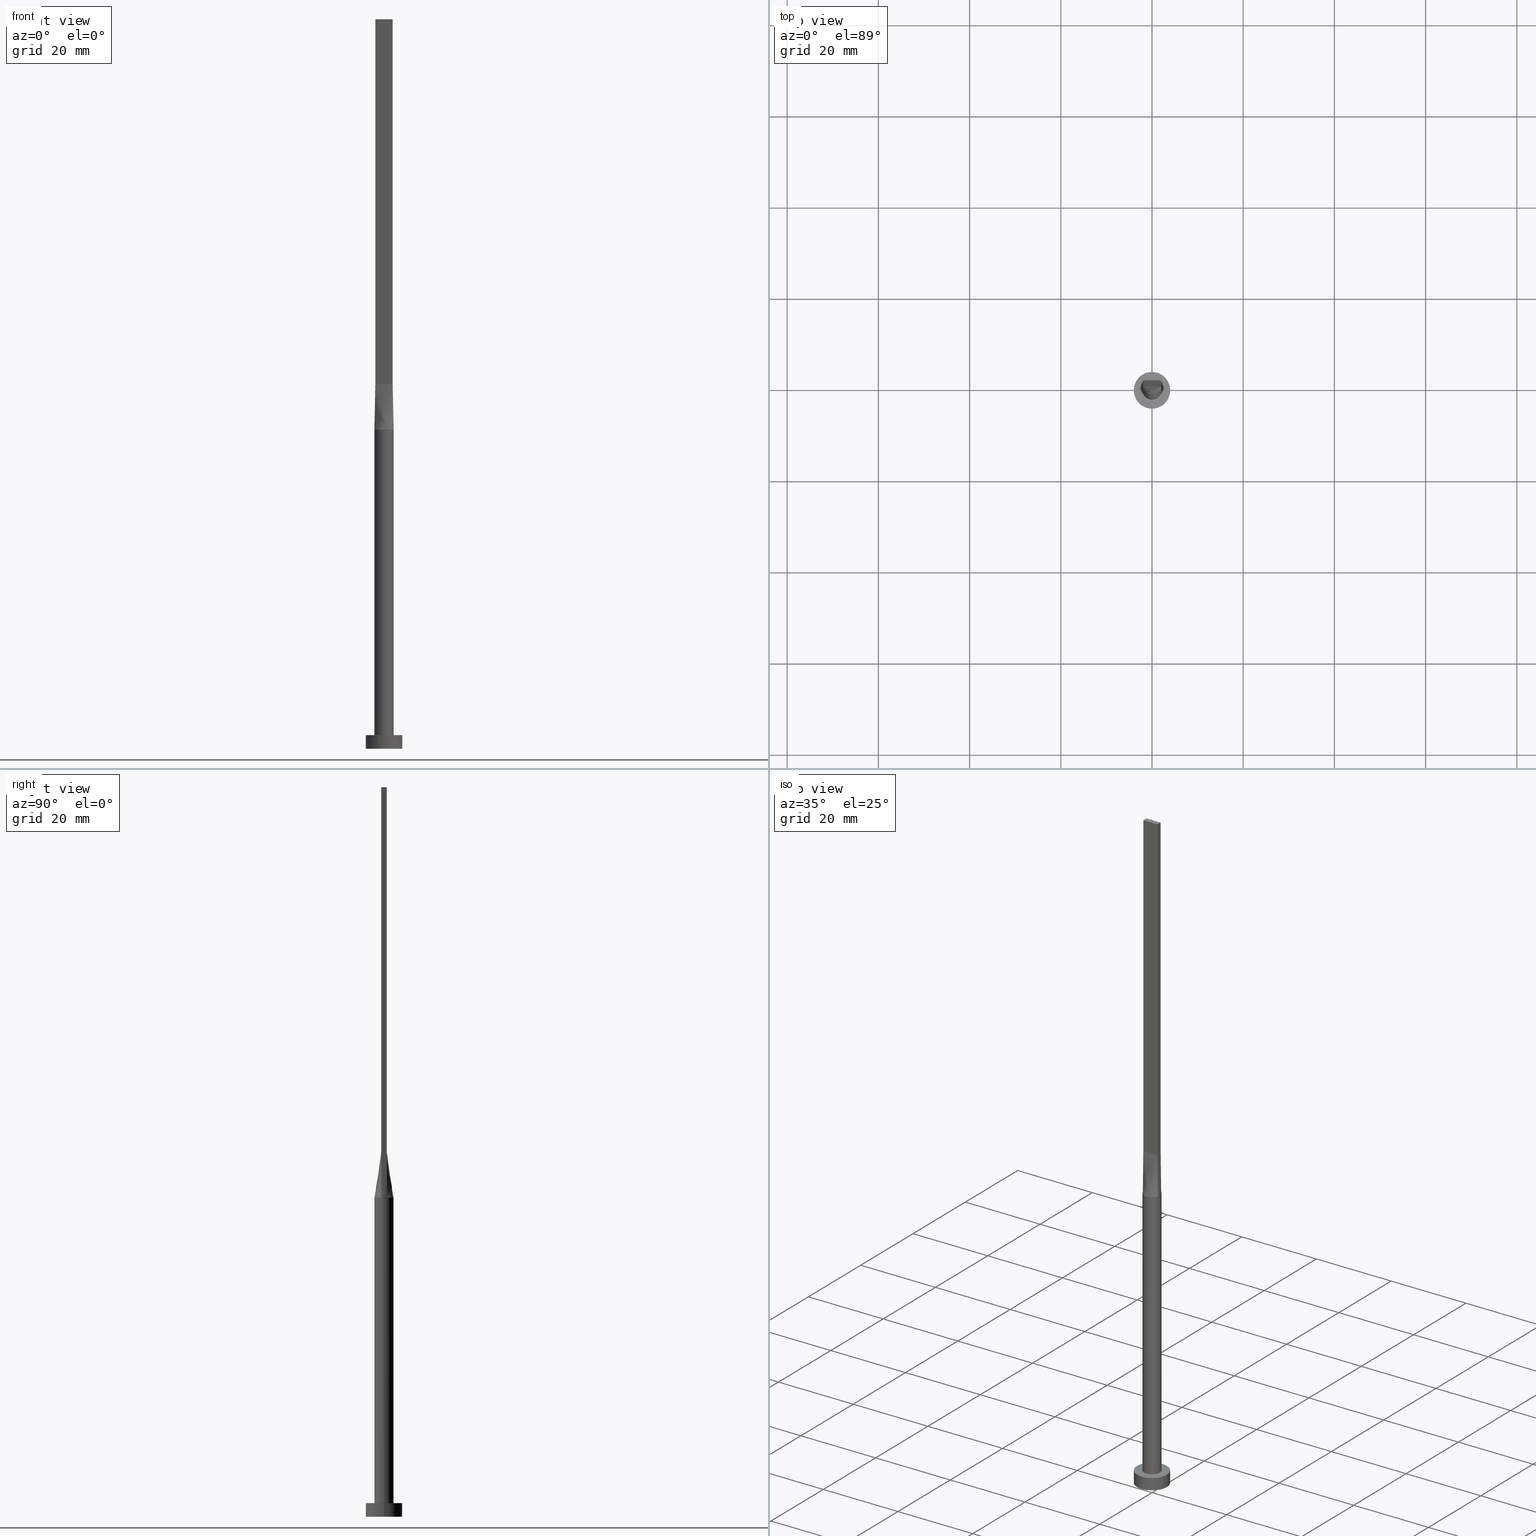
[diagram: canonical four-view strip — front | top / right | iso, engineering-drawing reading convention]
A machine part, canonical four-view strip (front | top / right | iso — engineering-drawing reading convention). The complete STEP part file that produces these views, byte-faithful:
ISO-10303-21;
HEADER;
FILE_DESCRIPTION (( 'STEP AP203' ),
    '1' );
FILE_NAME ('89bb.STEP',
    '2023-02-13T11:24:02',
    ( '' ),
    ( '' ),
    'SwSTEP 2.0',
    'SolidWorks 2019',
    '' );
FILE_SCHEMA (( 'CONFIG_CONTROL_DESIGN' ));
ENDSEC;

DATA;
#1 = EDGE_CURVE ( 'NONE', #192, #41, #16, .T. ) ;
#2 = DIRECTION ( 'NONE',  ( -1.000000000000000000, 5.706327223607918787E-17, 0.000000000000000000 ) ) ;
#3 = ORIENTED_EDGE ( 'NONE', *, *, #66, .T. ) ;
#4 = PERSON_AND_ORGANIZATION ( #333, #51 ) ;
#5 = AXIS2_PLACEMENT_3D ( 'NONE', #368, #105, #381 ) ;
#6 = CARTESIAN_POINT ( 'NONE',  ( -1.266666666666668162, -0.5999999999999994227, 79.99999999999998579 ) ) ;
#7 = CC_DESIGN_PERSON_AND_ORGANIZATION_ASSIGNMENT ( #149, #201, ( #200 ) ) ;
#8 = DIRECTION ( 'NONE',  ( -1.807003620809174632E-16, -1.000000000000000000, 0.000000000000000000 ) ) ;
#9 = DIRECTION ( 'NONE',  ( 0.000000000000000000, 0.000000000000000000, 1.000000000000000000 ) ) ;
#10 = EDGE_CURVE ( 'NONE', #565, #192, #511, .T. ) ;
#11 = CARTESIAN_POINT ( 'NONE',  ( -1.899999999999999467, 0.1999999999999964584, 79.99999999999998579 ) ) ;
#12 = CARTESIAN_POINT ( 'NONE',  ( 2.100000000000000089, 0.2158003972066308285, 69.99999999999998579 ) ) ;
#13 = CARTESIAN_POINT ( 'NONE',  ( -1.899999999999999911, -0.5999999999999995337, 80.00000000000000000 ) ) ;
#14 = CIRCLE ( 'NONE', #491, 4.000000000000000000 ) ;
#15 = CARTESIAN_POINT ( 'NONE',  ( -1.184262492297964098, -1.748903470433446294, 70.00000000000000000 ) ) ;
#16 = LINE ( 'NONE', #453, #574 ) ;
#17 = DIRECTION ( 'NONE',  ( -0.000000000000000000, -0.000000000000000000, -1.000000000000000000 ) ) ;
#18 = AXIS2_PLACEMENT_3D ( 'NONE', #538, #173, #119 ) ;
#19 = CARTESIAN_POINT ( 'NONE',  ( 2.100000000000000089, 2.571758278209441957E-16, 3.000000000000000000 ) ) ;
#20 = VECTOR ( 'NONE', #76, 1000.000000000000000 ) ;
#21 = CARTESIAN_POINT ( 'NONE',  ( 1.899999999999999689, -0.1999999999999998168, 79.99999999999998579 ) ) ;
#22 = CARTESIAN_POINT ( 'NONE',  ( -1.899999999999999911, -0.5999999999999995337, 80.00000000000000000 ) ) ;
#23 = ORIENTED_EDGE ( 'NONE', *, *, #508, .F. ) ;
#24 = CC_DESIGN_APPROVAL ( #496, ( #200 ) ) ;
#25 = CARTESIAN_POINT ( 'NONE',  ( 0.3166666666666652086, 0.6000000000000000888, 79.99999999999998579 ) ) ;
#26 = FACE_BOUND ( 'NONE', #545, .T. ) ;
#27 = FACE_OUTER_BOUND ( 'NONE', #175, .T. ) ;
#28 = PLANE ( 'NONE',  #89 ) ;
#29 = ORIENTED_EDGE ( 'NONE', *, *, #124, .T. ) ;
#30 = CARTESIAN_POINT ( 'NONE',  ( 1.184262492297964320, -1.748903470433446961, 70.00000000000001421 ) ) ;
#31 = CARTESIAN_POINT ( 'NONE',  ( 0.000000000000000000, 0.000000000000000000, 70.00000000000000000 ) ) ;
#32 = EDGE_CURVE ( 'NONE', #509, #49, #411, .T. ) ;
#33 = DIRECTION ( 'NONE',  ( -0.000000000000000000, -0.000000000000000000, -1.000000000000000000 ) ) ;
#34 = CALENDAR_DATE ( 2023, 13, 2 ) ;
#35 = CARTESIAN_POINT ( 'NONE',  ( 0.000000000000000000, 0.000000000000000000, 3.000000000000000000 ) ) ;
#36 = ORIENTED_EDGE ( 'NONE', *, *, #110, .F. ) ;
#37 = PRODUCT_RELATED_PRODUCT_CATEGORY ( 'detail', '', ( #97 ) ) ;
#38 = DIRECTION ( 'NONE',  ( 0.000000000000000000, 0.000000000000000000, 1.000000000000000000 ) ) ;
#39 = APPROVAL_PERSON_ORGANIZATION ( #4, #107, #414 ) ;
#40 = CARTESIAN_POINT ( 'NONE',  ( -1.108333333333334281, 0.6000000000000000888, 79.99999999999998579 ) ) ;
#41 = VERTEX_POINT ( 'NONE', #59 ) ;
#42 = VECTOR ( 'NONE', #299, 1000.000000000000000 ) ;
#43 = LINE ( 'NONE', #402, #42 ) ;
#44 = VERTEX_POINT ( 'NONE', #240 ) ;
#45 = VECTOR ( 'NONE', #523, 1000.000000000000000 ) ;
#46 = ORIENTED_EDGE ( 'NONE', *, *, #551, .F. ) ;
#47 = EDGE_CURVE ( 'NONE', #346, #572, #428, .T. ) ;
#48 = AXIS2_PLACEMENT_3D ( 'NONE', #133, #279, #53 ) ;
#49 = VERTEX_POINT ( 'NONE', #19 ) ;
#50 = CARTESIAN_POINT ( 'NONE',  ( -0.7916666666666692942, -0.5999999999999994227, 79.99999999999998579 ) ) ;
#51 = ORGANIZATION ( 'NEUR�EN�', 'NEUR�EN�', '' ) ;
#52 = CARTESIAN_POINT ( 'NONE',  ( -1.899999999999999689, -0.4000000000000020761, 79.99999999999998579 ) ) ;
#53 = DIRECTION ( 'NONE',  ( 1.000000000000000000, 0.000000000000000000, 0.000000000000000000 ) ) ;
#54 = PRODUCT_DEFINITION ( 'NEZN�M�', '', #397, #138 ) ;
#55 = CARTESIAN_POINT ( 'NONE',  ( -2.100000000000000089, -0.2158003972066306064, 69.99999999999998579 ) ) ;
#56 = ORIENTED_EDGE ( 'NONE', *, *, #527, .T. ) ;
#57 = FACE_OUTER_BOUND ( 'NONE', #420, .T. ) ;
#58 =( GEOMETRIC_REPRESENTATION_CONTEXT ( 3 ) GLOBAL_UNCERTAINTY_ASSIGNED_CONTEXT ( ( #308 ) ) GLOBAL_UNIT_ASSIGNED_CONTEXT ( ( #169, #401, #167 ) ) REPRESENTATION_CONTEXT ( 'NONE', 'WORKASPACE' ) );
#59 = CARTESIAN_POINT ( 'NONE',  ( -1.899999999999999911, -0.5999999999999995337, 160.0000000000000000 ) ) ;
#60 = CARTESIAN_POINT ( 'NONE',  ( 0.000000000000000000, 0.000000000000000000, 3.000000000000000000 ) ) ;
#61 = CALENDAR_DATE ( 2023, 13, 2 ) ;
#62 = VECTOR ( 'NONE', #464, 1000.000000000000000 ) ;
#63 = DIRECTION ( 'NONE',  ( 1.000000000000000000, 0.000000000000000000, 0.000000000000000000 ) ) ;
#64 = DATE_AND_TIME ( #517, #578 ) ;
#65 = DIRECTION ( 'NONE',  ( -0.000000000000000000, -0.000000000000000000, -1.000000000000000000 ) ) ;
#66 = EDGE_CURVE ( 'NONE', #44, #90, #195, .T. ) ;
#67 = CARTESIAN_POINT ( 'NONE',  ( 1.266666666666665941, 0.6000000000000000888, 79.99999999999998579 ) ) ;
#68 = ADVANCED_FACE ( 'NONE', ( #180 ), #500, .T. ) ;
#69 = LINE ( 'NONE', #285, #20 ) ;
#70 = ORIENTED_EDGE ( 'NONE', *, *, #406, .T. ) ;
#71 = FACE_OUTER_BOUND ( 'NONE', #457, .T. ) ;
#72 = APPROVAL_ROLE ( '' ) ;
#73 = CARTESIAN_POINT ( 'NONE',  ( -2.100000000000000089, -1.284268198382905442E-16, 70.00000000000000000 ) ) ;
#74 = CARTESIAN_POINT ( 'NONE',  ( 1.741666666666666252, 0.6000000000000001998, 80.00000000000000000 ) ) ;
#75 = CARTESIAN_POINT ( 'NONE',  ( -0.3166666666666682062, 0.6000000000000000888, 79.99999999999998579 ) ) ;
#76 = DIRECTION ( 'NONE',  ( -0.000000000000000000, -0.000000000000000000, -1.000000000000000000 ) ) ;
#77 = CYLINDRICAL_SURFACE ( 'NONE', #330, 2.100000000000000089 ) ;
#78 = CARTESIAN_POINT ( 'NONE',  ( -1.529462611013499451, 1.456669187245239527, 70.00000000000000000 ) ) ;
#79 = LINE ( 'NONE', #400, #543 ) ;
#80 = ADVANCED_FACE ( 'NONE', ( #26, #165 ), #434, .T. ) ;
#81 = DIRECTION ( 'NONE',  ( 0.000000000000000000, 0.000000000000000000, 1.000000000000000000 ) ) ;
#82 = ORIENTED_EDGE ( 'NONE', *, *, #327, .F. ) ;
#83 = ORIENTED_EDGE ( 'NONE', *, *, #254, .T. ) ;
#84 = CARTESIAN_POINT ( 'NONE',  ( 1.899999999999999023, -0.5999999999999997558, 160.0000000000000000 ) ) ;
#85 = ORIENTED_EDGE ( 'NONE', *, *, #527, .F. ) ;
#86 = ORIENTED_EDGE ( 'NONE', *, *, #466, .F. ) ;
#87 = EDGE_CURVE ( 'NONE', #49, #509, #284, .T. ) ;
#88 = AXIS2_PLACEMENT_3D ( 'NONE', #260, #161, #344 ) ;
#89 = AXIS2_PLACEMENT_3D ( 'NONE', #208, #532, #2 ) ;
#90 = VERTEX_POINT ( 'NONE', #104 ) ;
#91 = ORIENTED_EDGE ( 'NONE', *, *, #100, .T. ) ;
#92 = CARTESIAN_POINT ( 'NONE',  ( 1.951261798390848901, 0.6161879363339524129, 75.00000000000001421 ) ) ;
#93 = CALENDAR_DATE ( 2023, 13, 2 ) ;
#94 = CARTESIAN_POINT ( 'NONE',  ( -0.6333333333333361903, -0.5999999999999994227, 79.99999999999998579 ) ) ;
#95 = CARTESIAN_POINT ( 'NONE',  ( 0.000000000000000000, 0.000000000000000000, 0.000000000000000000 ) ) ;
#96 = VECTOR ( 'NONE', #65, 1000.000000000000000 ) ;
#97 = PRODUCT ( '89bb', '89bb', '', ( #206 ) ) ;
#98 = FACE_OUTER_BOUND ( 'NONE', #423, .T. ) ;
#99 = CARTESIAN_POINT ( 'NONE',  ( 1.899999999999999689, 0.6000000000000001998, 160.0000000000000000 ) ) ;
#100 = EDGE_CURVE ( 'NONE', #44, #278, #177, .T. ) ;
#101 = LINE ( 'NONE', #433, #266 ) ;
#102 = CIRCLE ( 'NONE', #5, 2.100000000000000089 ) ;
#103 = COORDINATED_UNIVERSAL_TIME_OFFSET ( 1, 0, .AHEAD. ) ;
#104 = CARTESIAN_POINT ( 'NONE',  ( 1.899999999999999689, 0.6000000000000001998, 80.00000000000000000 ) ) ;
#105 = DIRECTION ( 'NONE',  ( 0.000000000000000000, 0.000000000000000000, 1.000000000000000000 ) ) ;
#106 = DIRECTION ( 'NONE',  ( 1.000000000000000000, 0.000000000000000000, -0.000000000000000000 ) ) ;
#107 = APPROVAL ( #134, 'NEUR�EN�' ) ;
#108 = CARTESIAN_POINT ( 'NONE',  ( -1.951261798390848901, -0.6161879363339519688, 75.00000000000001421 ) ) ;
#109 = CARTESIAN_POINT ( 'NONE',  ( -1.899999999999999689, 0.6000000000000001998, 80.00000000000000000 ) ) ;
#110 = EDGE_CURVE ( 'NONE', #132, #509, #154, .T. ) ;
#111 = CARTESIAN_POINT ( 'NONE',  ( -0.5124799074986362557, 2.051574327850739454, 70.00000000000001421 ) ) ;
#112 = MANIFOLD_SOLID_BREP ( 'P�idat vysunut�m5', #580 ) ;
#113 = CIRCLE ( 'NONE', #280, 4.000000000000000000 ) ;
#114 = CARTESIAN_POINT ( 'NONE',  ( 1.667357759214464608, 1.291791096182927090, 70.00000000000001421 ) ) ;
#115 = CARTESIAN_POINT ( 'NONE',  ( 0.1583333333333316328, 0.6000000000000000888, 79.99999999999998579 ) ) ;
#116 = VECTOR ( 'NONE', #288, 1000.000000000000114 ) ;
#117 = APPLICATION_PROTOCOL_DEFINITION ( 'international standard', 'config_control_design', 1994, #431 ) ;
#118 = CARTESIAN_POINT ( 'NONE',  ( -1.184262492297963876, 1.748903470433446294, 70.00000000000001421 ) ) ;
#119 = DIRECTION ( 'NONE',  ( 1.000000000000000000, 0.000000000000000000, 0.000000000000000000 ) ) ;
#120 = APPROVAL ( #301, 'NEUR�EN�' ) ;
#121 = EDGE_LOOP ( 'NONE', ( #91, #364, #85, #263 ) ) ;
#122 = DIRECTION ( 'NONE',  ( 1.000000000000000000, 0.000000000000000000, 0.000000000000000000 ) ) ;
#123 = ORIENTED_EDGE ( 'NONE', *, *, #220, .F. ) ;
#124 = EDGE_CURVE ( 'NONE', #572, #573, #163, .T. ) ;
#125 = ORIENTED_EDGE ( 'NONE', *, *, #387, .F. ) ;
#126 = CARTESIAN_POINT ( 'NONE',  ( 1.667357759214464830, -1.291791096182927534, 70.00000000000001421 ) ) ;
#127 = ORIENTED_EDGE ( 'NONE', *, *, #218, .F. ) ;
#128 = PERSON_AND_ORGANIZATION ( #333, #51 ) ;
#129 = ORIENTED_EDGE ( 'NONE', *, *, #444, .T. ) ;
#130 = PERSON_AND_ORGANIZATION ( #333, #51 ) ;
#131 = AXIS2_PLACEMENT_3D ( 'NONE', #477, #544, #178 ) ;
#132 = VERTEX_POINT ( 'NONE', #73 ) ;
#133 = CARTESIAN_POINT ( 'NONE',  ( 0.000000000000000000, 0.000000000000000000, 3.000000000000000000 ) ) ;
#134 = APPROVAL_STATUS ( 'not_yet_approved' ) ;
#135 = CARTESIAN_POINT ( 'NONE',  ( -2.002523596781697890, -0.6323758726679044040, 70.00000000000000000 ) ) ;
#136 = DIRECTION ( 'NONE',  ( 1.000000000000000000, 0.000000000000000000, 0.000000000000000000 ) ) ;
#137 = AXIS2_PLACEMENT_3D ( 'NONE', #237, #389, #198 ) ;
#138 = DESIGN_CONTEXT ( 'detailed design', #386, 'design' ) ;
#139 = CARTESIAN_POINT ( 'NONE',  ( 4.000000000000000000, 4.898587196589412829E-16, 3.000000000000000000 ) ) ;
#140 = CARTESIAN_POINT ( 'NONE',  ( -1.741666666666666918, -0.5999999999999994227, 79.99999999999998579 ) ) ;
#141 = CARTESIAN_POINT ( 'NONE',  ( -0.2565105576742081062, -2.100000000000000089, 70.00000000000000000 ) ) ;
#142 = EDGE_CURVE ( 'NONE', #235, #273, #69, .T. ) ;
#143 = ORIENTED_EDGE ( 'NONE', *, *, #110, .T. ) ;
#144 = PLANE ( 'NONE',  #504 ) ;
#145 = CC_DESIGN_PERSON_AND_ORGANIZATION_ASSIGNMENT ( #306, #501, ( #397 ) ) ;
#146 = ORIENTED_EDGE ( 'NONE', *, *, #254, .F. ) ;
#147 = LINE ( 'NONE', #373, #366 ) ;
#148 = VECTOR ( 'NONE', #413, 1000.000000000000000 ) ;
#149 = PERSON_AND_ORGANIZATION ( #333, #51 ) ;
#150 = ORIENTED_EDGE ( 'NONE', *, *, #100, .F. ) ;
#151 = DATE_AND_TIME ( #93, #484 ) ;
#152 = CARTESIAN_POINT ( 'NONE',  ( 2.100000000000000089, 3.372022381799045987E-17, 70.00000000000000000 ) ) ;
#153 = CARTESIAN_POINT ( 'NONE',  ( -0.1583333333333350745, 0.6000000000000000888, 79.99999999999998579 ) ) ;
#154 = LINE ( 'NONE', #518, #96 ) ;
#155 = ADVANCED_FACE ( 'NONE', ( #437 ), #28, .F. ) ;
#156 = PERSON_AND_ORGANIZATION_ROLE ( 'design_owner' ) ;
#157 = CARTESIAN_POINT ( 'NONE',  ( -2.100000000000000089, 0.000000000000000000, 3.000000000000000000 ) ) ;
#158 = DIRECTION ( 'NONE',  ( 0.000000000000000000, 0.000000000000000000, 1.000000000000000000 ) ) ;
#159 = ORIENTED_EDGE ( 'NONE', *, *, #406, .F. ) ;
#160 = AXIS2_PLACEMENT_3D ( 'NONE', #485, #81, #259 ) ;
#161 = DIRECTION ( 'NONE',  ( 0.000000000000000000, 0.000000000000000000, 1.000000000000000000 ) ) ;
#162 = CARTESIAN_POINT ( 'NONE',  ( 0.6333333333333320825, 0.6000000000000000888, 79.99999999999998579 ) ) ;
#163 = LINE ( 'NONE', #108, #116 ) ;
#164 = EDGE_CURVE ( 'NONE', #534, #565, #43, .T. ) ;
#165 = FACE_OUTER_BOUND ( 'NONE', #168, .T. ) ;
#166 = ORIENTED_EDGE ( 'NONE', *, *, #508, .T. ) ;
#167 =( NAMED_UNIT ( * ) SI_UNIT ( $, .STERADIAN. ) SOLID_ANGLE_UNIT ( ) );
#168 = EDGE_LOOP ( 'NONE', ( #391, #83 ) ) ;
#169 =( LENGTH_UNIT ( ) NAMED_UNIT ( * ) SI_UNIT ( .MILLI., .METRE. ) );
#170 = DIRECTION ( 'NONE',  ( 0.000000000000000000, 0.000000000000000000, 1.000000000000000000 ) ) ;
#171 = EDGE_CURVE ( 'NONE', #340, #44, #361, .T. ) ;
#172 = CARTESIAN_POINT ( 'NONE',  ( -1.899999999999999911, -0.5999999999999995337, 80.00000000000000000 ) ) ;
#173 = DIRECTION ( 'NONE',  ( 0.000000000000000000, 0.000000000000000000, 1.000000000000000000 ) ) ;
#174 = CARTESIAN_POINT ( 'NONE',  ( 1.583333333333331483, -0.5999999999999996447, 79.99999999999998579 ) ) ;
#175 = EDGE_LOOP ( 'NONE', ( #300, #222, #329, #36, #303, #150 ) ) ;
#176 = VECTOR ( 'NONE', #388, 1000.000000000000114 ) ;
#177 = B_SPLINE_CURVE_WITH_KNOTS ( 'NONE', 3,
 ( #282, #215, #525, #114, #515, #252, #378, #211, #530, #291, #111, #562, #467, #430, #322, #480, #394, #385 ),
 .UNSPECIFIED., .F., .F.,
 ( 4, 2, 2, 2, 2, 2, 2, 2, 4 ),
 ( 0.000000000000000000, 0.1249999999999999167, 0.2499999999999998890, 0.3749999999999998335, 0.4999999999999998890, 0.6249999999999998890, 0.7499999999999998890, 0.8750000000000000000, 1.000000000000000000 ),
 .UNSPECIFIED. ) ;
#178 = DIRECTION ( 'NONE',  ( -1.000000000000000000, 0.000000000000000000, 0.000000000000000000 ) ) ;
#179 = CARTESIAN_POINT ( 'NONE',  ( 1.108333333333330506, -0.5999999999999996447, 79.99999999999998579 ) ) ;
#180 = FACE_OUTER_BOUND ( 'NONE', #267, .T. ) ;
#181 = ORIENTED_EDGE ( 'NONE', *, *, #549, .T. ) ;
#182 = CARTESIAN_POINT ( 'NONE',  ( -1.899999999999999689, -0.2000000000000034250, 79.99999999999998579 ) ) ;
#183 = CARTESIAN_POINT ( 'NONE',  ( -1.667357759214464386, -1.291791096182926424, 70.00000000000000000 ) ) ;
#184 = ORIENTED_EDGE ( 'NONE', *, *, #551, .T. ) ;
#185 = FACE_OUTER_BOUND ( 'NONE', #197, .T. ) ;
#186 = VECTOR ( 'NONE', #408, 1000.000000000000000 ) ;
#187 = EDGE_CURVE ( 'NONE', #226, #273, #334, .T. ) ;
#188 = B_SPLINE_SURFACE_WITH_KNOTS ( 'NONE', 3, 1, ( 
 ( #481, #338 ),
 ( #438, #74 ),
 ( #216, #399 ),
 ( #473, #67 ),
 ( #571, #253 ),
 ( #441, #214 ),
 ( #524, #162 ),
 ( #398, #25 ),
 ( #529, #115 ),
 ( #483, #153 ),
 ( #335, #75 ),
 ( #384, #531 ),
 ( #118, #251 ),
 ( #78, #40 ),
 ( #247, #561 ),
 ( #479, #470 ),
 ( #246, #370 ),
 ( #383, #294 ) ),
 .UNSPECIFIED., .F., .F., .F.,
 ( 4, 2, 2, 2, 2, 2, 2, 2, 4 ),
 ( 2, 2 ),
 ( 0.000000000000000000, 0.1249999999999999167, 0.2499999999999998890, 0.3749999999999998335, 0.4999999999999998890, 0.6249999999999998890, 0.7499999999999998890, 0.8750000000000000000, 1.000000000000000000 ),
 ( 0.000000000000000000, 1.000000000000000000 ),
 .UNSPECIFIED. ) ;
#189 = CARTESIAN_POINT ( 'NONE',  ( -2.065999667310664645, -0.4313683159928413113, 70.00000000000000000 ) ) ;
#190 = CARTESIAN_POINT ( 'NONE',  ( -0.5124799074986365888, -2.051574327850738566, 70.00000000000001421 ) ) ;
#191 = CARTESIAN_POINT ( 'NONE',  ( -4.000000000000000000, 0.000000000000000000, 3.000000000000000000 ) ) ;
#192 = VERTEX_POINT ( 'NONE', #297 ) ;
#193 = CARTESIAN_POINT ( 'NONE',  ( 2.002523596781698334, -0.6323758726679041819, 70.00000000000000000 ) ) ;
#194 = PRODUCT_DEFINITION_SHAPE ( 'NONE', 'NONE',  #54 ) ;
#195 = LINE ( 'NONE', #92, #207 ) ;
#196 = PLANE ( 'NONE',  #552 ) ;
#197 = EDGE_LOOP ( 'NONE', ( #374, #86, #567, #184 ) ) ;
#198 = DIRECTION ( 'NONE',  ( 1.000000000000000000, 0.000000000000000000, -0.000000000000000000 ) ) ;
#199 = ORIENTED_EDGE ( 'NONE', *, *, #412, .T. ) ;
#200 = SECURITY_CLASSIFICATION ( '', '', #245 ) ;
#201 = PERSON_AND_ORGANIZATION_ROLE ( 'classification_officer' ) ;
#202 = DIRECTION ( 'NONE',  ( -0.000000000000000000, -0.000000000000000000, -1.000000000000000000 ) ) ;
#203 = PERSON_AND_ORGANIZATION_ROLE ( 'creator' ) ;
#204 = CARTESIAN_POINT ( 'NONE',  ( -1.951261798390848901, 0.6161879363339521909, 75.00000000000001421 ) ) ;
#205 = DIRECTION ( 'NONE',  ( 1.807003620809174632E-16, 1.000000000000000000, 0.000000000000000000 ) ) ;
#206 = MECHANICAL_CONTEXT ( 'NONE', #431, 'mechanical' ) ;
#207 = VECTOR ( 'NONE', #305, 1000.000000000000114 ) ;
#208 = CARTESIAN_POINT ( 'NONE',  ( -1.899999999999999911, -0.5999999999999995337, 160.0000000000000000 ) ) ;
#209 = ORIENTED_EDGE ( 'NONE', *, *, #47, .T. ) ;
#210 = CARTESIAN_POINT ( 'NONE',  ( 0.7916666666666634100, -0.5999999999999996447, 79.99999999999998579 ) ) ;
#211 = CARTESIAN_POINT ( 'NONE',  ( 0.5124799074986362557, 2.051574327850739454, 70.00000000000002842 ) ) ;
#212 = EDGE_CURVE ( 'NONE', #367, #340, #577, .T. ) ;
#213 = CIRCLE ( 'NONE', #232, 2.100000000000000089 ) ;
#214 = CARTESIAN_POINT ( 'NONE',  ( 0.7916666666666655194, 0.6000000000000000888, 79.99999999999998579 ) ) ;
#215 = CARTESIAN_POINT ( 'NONE',  ( 1.952271707612931895, 0.7915068550356627597, 70.00000000000000000 ) ) ;
#216 = CARTESIAN_POINT ( 'NONE',  ( 1.878511276496548366, 0.9591670956957804028, 70.00000000000000000 ) ) ;
#217 = PERSON_AND_ORGANIZATION ( #333, #51 ) ;
#218 = EDGE_CURVE ( 'NONE', #235, #228, #14, .T. ) ;
#219 = AXIS2_PLACEMENT_3D ( 'NONE', #35, #202, #558 ) ;
#220 = EDGE_CURVE ( 'NONE', #573, #367, #302, .T. ) ;
#221 = DIRECTION ( 'NONE',  ( -1.000000000000000000, 5.421010862427522170E-16, 0.000000000000000000 ) ) ;
#222 = ORIENTED_EDGE ( 'NONE', *, *, #387, .T. ) ;
#223 = CARTESIAN_POINT ( 'NONE',  ( 1.266666666666664165, -0.5999999999999996447, 79.99999999999998579 ) ) ;
#224 = VECTOR ( 'NONE', #325, 1000.000000000000114 ) ;
#225 = ORIENTED_EDGE ( 'NONE', *, *, #10, .F. ) ;
#226 = VERTEX_POINT ( 'NONE', #499 ) ;
#227 = DIRECTION ( 'NONE',  ( -5.421010862427522170E-16, -1.000000000000000000, 0.000000000000000000 ) ) ;
#228 = VERTEX_POINT ( 'NONE', #139 ) ;
#229 = COORDINATED_UNIVERSAL_TIME_OFFSET ( 1, 0, .AHEAD. ) ;
#230 = CC_DESIGN_PERSON_AND_ORGANIZATION_ASSIGNMENT ( #392, #203, ( #54 ) ) ;
#231 = EDGE_LOOP ( 'NONE', ( #125, #490, #123, #341, #143, #336 ) ) ;
#232 = AXIS2_PLACEMENT_3D ( 'NONE', #468, #421, #432 ) ;
#233 = CARTESIAN_POINT ( 'NONE',  ( 0.1583333333333295512, -0.5999999999999995337, 79.99999999999998579 ) ) ;
#234 = FACE_OUTER_BOUND ( 'NONE', #482, .T. ) ;
#235 = VERTEX_POINT ( 'NONE', #191 ) ;
#236 = CARTESIAN_POINT ( 'NONE',  ( 1.899999999999999689, -0.3999999999999997446, 79.99999999999998579 ) ) ;
#237 = CARTESIAN_POINT ( 'NONE',  ( 0.000000000000000000, 0.000000000000000000, 0.000000000000000000 ) ) ;
#238 = CC_DESIGN_PERSON_AND_ORGANIZATION_ASSIGNMENT ( #377, #556, ( #397 ) ) ;
#239 = CARTESIAN_POINT ( 'NONE',  ( -0.1583333333333370174, -0.5999999999999995337, 79.99999999999998579 ) ) ;
#240 = CARTESIAN_POINT ( 'NONE',  ( 2.002598039528881380, 0.6323997261616642884, 70.00000000000000000 ) ) ;
#241 = CARTESIAN_POINT ( 'NONE',  ( 2.099999999999999645, -0.2158003972066312171, 69.99999999999998579 ) ) ;
#242 = DIRECTION ( 'NONE',  ( 0.000000000000000000, -1.000000000000000000, 0.000000000000000000 ) ) ;
#243 = LINE ( 'NONE', #204, #176 ) ;
#244 = CARTESIAN_POINT ( 'NONE',  ( 1.899999999999999023, -0.5999999999999997558, 80.00000000000000000 ) ) ;
#245 = SECURITY_CLASSIFICATION_LEVEL ( 'unclassified' ) ;
#246 = CARTESIAN_POINT ( 'NONE',  ( -1.952271707612931895, 0.7915068550356629817, 70.00000000000000000 ) ) ;
#247 = CARTESIAN_POINT ( 'NONE',  ( -1.667357759214464830, 1.291791096182927534, 70.00000000000001421 ) ) ;
#248 = CARTESIAN_POINT ( 'NONE',  ( 0.000000000000000000, 0.000000000000000000, 3.000000000000000000 ) ) ;
#249 = CARTESIAN_POINT ( 'NONE',  ( 1.741666666666665142, -0.5999999999999996447, 79.99999999999998579 ) ) ;
#250 = AXIS2_PLACEMENT_3D ( 'NONE', #537, #221, #227 ) ;
#251 = CARTESIAN_POINT ( 'NONE',  ( -0.7916666666666677399, 0.6000000000000000888, 79.99999999999998579 ) ) ;
#252 = CARTESIAN_POINT ( 'NONE',  ( 1.184262492297964098, 1.748903470433445628, 70.00000000000000000 ) ) ;
#253 = CARTESIAN_POINT ( 'NONE',  ( 1.108333333333332504, 0.6000000000000000888, 79.99999999999998579 ) ) ;
#254 = EDGE_CURVE ( 'NONE', #228, #235, #113, .T. ) ;
#255 = EDGE_CURVE ( 'NONE', #572, #405, #419, .T. ) ;
#256 = AXIS2_PLACEMENT_3D ( 'NONE', #60, #436, #521 ) ;
#257 = LINE ( 'NONE', #328, #45 ) ;
#258 = LINE ( 'NONE', #409, #526 ) ;
#259 = DIRECTION ( 'NONE',  ( 1.000000000000000000, -1.776356839400250465E-15, 0.000000000000000000 ) ) ;
#260 = CARTESIAN_POINT ( 'NONE',  ( 0.000000000000000000, 0.000000000000000000, 0.000000000000000000 ) ) ;
#261 = ADVANCED_FACE ( 'NONE', ( #553 ), #277, .T. ) ;
#262 = DIRECTION ( 'NONE',  ( 0.000000000000000000, 0.000000000000000000, 1.000000000000000000 ) ) ;
#263 = ORIENTED_EDGE ( 'NONE', *, *, #66, .F. ) ;
#264 = CARTESIAN_POINT ( 'NONE',  ( 1.529462611013499229, -1.456669187245239971, 70.00000000000000000 ) ) ;
#265 = ORIENTED_EDGE ( 'NONE', *, *, #164, .T. ) ;
#266 = VECTOR ( 'NONE', #563, 1000.000000000000000 ) ;
#267 = EDGE_LOOP ( 'NONE', ( #396, #127, #576, #129 ) ) ;
#268 = APPROVAL_STATUS ( 'not_yet_approved' ) ;
#269 = ADVANCED_FACE ( 'NONE', ( #502 ), #494, .T. ) ;
#270 = CARTESIAN_POINT ( 'NONE',  ( -1.529462611013499229, -1.456669187245239749, 69.99999999999998579 ) ) ;
#271 = ORIENTED_EDGE ( 'NONE', *, *, #444, .F. ) ;
#272 = CARTESIAN_POINT ( 'NONE',  ( -1.899999999999999689, 0.6000000000000001998, 80.00000000000000000 ) ) ;
#273 = VERTEX_POINT ( 'NONE', #560 ) ;
#274 = LOCAL_TIME ( 12, 24, 1.000000000000000000, #287 ) ;
#275 = CARTESIAN_POINT ( 'NONE',  ( -2.002523596781697890, -0.6323758726679042930, 70.00000000000000000 ) ) ;
#276 = ORIENTED_EDGE ( 'NONE', *, *, #1, .T. ) ;
#277 = B_SPLINE_SURFACE_WITH_KNOTS ( 'NONE', 3, 1, ( 
 ( #514, #546 ),
 ( #497, #417 ),
 ( #451, #11 ),
 ( #55, #182 ),
 ( #189, #52 ),
 ( #135, #309 ) ),
 .UNSPECIFIED., .F., .F., .F.,
 ( 4, 2, 4 ),
 ( 2, 2 ),
 ( 0.000000000000000000, 0.5000000000000000000, 1.000000000000000000 ),
 ( 0.000000000000000000, 1.000000000000000000 ),
 .UNSPECIFIED. ) ;
#278 = VERTEX_POINT ( 'NONE', #461 ) ;
#279 = DIRECTION ( 'NONE',  ( 0.000000000000000000, 0.000000000000000000, 1.000000000000000000 ) ) ;
#280 = AXIS2_PLACEMENT_3D ( 'NONE', #313, #9, #136 ) ;
#281 = CARTESIAN_POINT ( 'NONE',  ( 1.899999999999999911, -0.5999999999999997558, 80.00000000000000000 ) ) ;
#282 = CARTESIAN_POINT ( 'NONE',  ( 2.002598039528881380, 0.6323997261616642884, 70.00000000000000000 ) ) ;
#283 = PLANE ( 'NONE',  #137 ) ;
#284 = CIRCLE ( 'NONE', #539, 2.100000000000000089 ) ;
#285 = CARTESIAN_POINT ( 'NONE',  ( -4.000000000000000000, 0.000000000000000000, 3.000000000000000000 ) ) ;
#286 = CARTESIAN_POINT ( 'NONE',  ( 0.000000000000000000, 0.000000000000000000, 160.0000000000000000 ) ) ;
#287 = COORDINATED_UNIVERSAL_TIME_OFFSET ( 1, 0, .AHEAD. ) ;
#288 = DIRECTION ( 'NONE',  ( -0.01025176717979707323, -0.003237400162041204326, -0.9999422085850171449 ) ) ;
#289 = ORIENTED_EDGE ( 'NONE', *, *, #187, .T. ) ;
#290 = LINE ( 'NONE', #516, #224 ) ;
#291 = CARTESIAN_POINT ( 'NONE',  ( -0.2565105576742073845, 2.100000000000000533, 70.00000000000001421 ) ) ;
#292 = FACE_OUTER_BOUND ( 'NONE', #121, .T. ) ;
#293 = ORIENTED_EDGE ( 'NONE', *, *, #187, .F. ) ;
#294 = CARTESIAN_POINT ( 'NONE',  ( -1.899999999999999689, 0.6000000000000001998, 80.00000000000000000 ) ) ;
#295 = CC_DESIGN_APPROVAL ( #107, ( #397 ) ) ;
#296 = CARTESIAN_POINT ( 'NONE',  ( 1.952271707612932339, -0.7915068550356634258, 70.00000000000000000 ) ) ;
#297 = CARTESIAN_POINT ( 'NONE',  ( -1.899999999999999689, 0.6000000000000001998, 160.0000000000000000 ) ) ;
#298 = CARTESIAN_POINT ( 'NONE',  ( 0.000000000000000000, 0.000000000000000000, 70.00000000000000000 ) ) ;
#299 = DIRECTION ( 'NONE',  ( 5.421010862427522170E-16, 1.000000000000000000, 0.000000000000000000 ) ) ;
#300 = ORIENTED_EDGE ( 'NONE', *, *, #171, .F. ) ;
#301 = APPROVAL_STATUS ( 'not_yet_approved' ) ;
#302 = CIRCLE ( 'NONE', #355, 2.100000000000000089 ) ;
#303 = ORIENTED_EDGE ( 'NONE', *, *, #443, .F. ) ;
#304 = CARTESIAN_POINT ( 'NONE',  ( 1.899999999999999689, 0.6000000000000001998, 160.0000000000000000 ) ) ;
#305 = DIRECTION ( 'NONE',  ( -0.01025176717979709405, -0.003237400162041182208, 0.9999422085850171449 ) ) ;
#306 = PERSON_AND_ORGANIZATION ( #333, #51 ) ;
#307 = ADVANCED_FACE ( 'NONE', ( #98 ), #376, .F. ) ;
#308 = UNCERTAINTY_MEASURE_WITH_UNIT (LENGTH_MEASURE( 1.000000000000000082E-05 ), #169, 'distance_accuracy_value', 'NONE');
#309 = CARTESIAN_POINT ( 'NONE',  ( -1.899999999999999911, -0.5999999999999995337, 80.00000000000000000 ) ) ;
#310 = APPROVAL_ROLE ( '' ) ;
#311 = CARTESIAN_POINT ( 'NONE',  ( -1.108333333333335169, -0.5999999999999994227, 79.99999999999998579 ) ) ;
#312 = ADVANCED_FACE ( 'NONE', ( #57 ), #283, .F. ) ;
#313 = CARTESIAN_POINT ( 'NONE',  ( 0.000000000000000000, 0.000000000000000000, 3.000000000000000000 ) ) ;
#314 = ORIENTED_EDGE ( 'NONE', *, *, #10, .T. ) ;
#315 = ORIENTED_EDGE ( 'NONE', *, *, #255, .F. ) ;
#316 = CARTESIAN_POINT ( 'NONE',  ( 1.899999999999999023, -0.5999999999999997558, 80.00000000000000000 ) ) ;
#317 = ORIENTED_EDGE ( 'NONE', *, *, #124, .F. ) ;
#318 = VECTOR ( 'NONE', #492, 1000.000000000000000 ) ;
#319 = CARTESIAN_POINT ( 'NONE',  ( 2.002523596781697890, 0.6323758726679047371, 70.00000000000000000 ) ) ;
#320 = DIRECTION ( 'NONE',  ( 0.000000000000000000, -0.000000000000000000, -1.000000000000000000 ) ) ;
#321 = COORDINATED_UNIVERSAL_TIME_OFFSET ( 1, 0, .AHEAD. ) ;
#322 = CARTESIAN_POINT ( 'NONE',  ( -1.667357759214464830, 1.291791096182927534, 70.00000000000001421 ) ) ;
#323 = CARTESIAN_POINT ( 'NONE',  ( -1.899999999999999689, 0.6000000000000001998, 160.0000000000000000 ) ) ;
#324 = DIRECTION ( 'NONE',  ( 1.000000000000000000, 0.000000000000000000, 0.000000000000000000 ) ) ;
#325 = DIRECTION ( 'NONE',  ( -0.01025176717979720507, 0.003237400162041171366, 0.9999422085850171449 ) ) ;
#326 = ORIENTED_EDGE ( 'NONE', *, *, #255, .T. ) ;
#327 = EDGE_CURVE ( 'NONE', #405, #90, #101, .T. ) ;
#328 = CARTESIAN_POINT ( 'NONE',  ( -1.899999999999999689, 0.6000000000000001998, 80.00000000000000000 ) ) ;
#329 = ORIENTED_EDGE ( 'NONE', *, *, #87, .T. ) ;
#330 = AXIS2_PLACEMENT_3D ( 'NONE', #31, #332, #439 ) ;
#331 = DATE_TIME_ROLE ( 'creation_date' ) ;
#332 = DIRECTION ( 'NONE',  ( -0.000000000000000000, -0.000000000000000000, -1.000000000000000000 ) ) ;
#333 = PERSON ( 'NEUR�EN�', 'NEUR�EN�', 'NEUR�EN�', ('NEUR�EN�'), ('NEUR�EN�'), ('NEUR�EN�') ) ;
#334 = CIRCLE ( 'NONE', #503, 4.000000000000000000 ) ;
#335 = CARTESIAN_POINT ( 'NONE',  ( -0.5124799074986362557, 2.051574327850739454, 70.00000000000001421 ) ) ;
#336 = ORIENTED_EDGE ( 'NONE', *, *, #32, .T. ) ;
#337 = CARTESIAN_POINT ( 'NONE',  ( 0.6333333333333299731, -0.5999999999999996447, 79.99999999999998579 ) ) ;
#338 = CARTESIAN_POINT ( 'NONE',  ( 1.899999999999999689, 0.6000000000000001998, 80.00000000000000000 ) ) ;
#339 = DIRECTION ( 'NONE',  ( 0.000000000000000000, 0.000000000000000000, 1.000000000000000000 ) ) ;
#340 = VERTEX_POINT ( 'NONE', #152 ) ;
#341 = ORIENTED_EDGE ( 'NONE', *, *, #412, .F. ) ;
#342 = EDGE_CURVE ( 'NONE', #367, #405, #290, .T. ) ;
#343 = CC_DESIGN_SECURITY_CLASSIFICATION ( #200, ( #397 ) ) ;
#344 = DIRECTION ( 'NONE',  ( 1.000000000000000000, 0.000000000000000000, 0.000000000000000000 ) ) ;
#345 = DATE_AND_TIME ( #459, #557 ) ;
#346 = VERTEX_POINT ( 'NONE', #109 ) ;
#347 = ADVANCED_BREP_SHAPE_REPRESENTATION ( '89bb', ( #112, #88 ), #58 ) ;
#348 = LINE ( 'NONE', #447, #318 ) ;
#349 = ORIENTED_EDGE ( 'NONE', *, *, #142, .F. ) ;
#350 = VECTOR ( 'NONE', #8, 1000.000000000000000 ) ;
#351 = ADVANCED_FACE ( 'NONE', ( #469 ), #196, .T. ) ;
#352 = PLANE ( 'NONE',  #250 ) ;
#353 = LINE ( 'NONE', #84, #186 ) ;
#354 = B_SPLINE_SURFACE_WITH_KNOTS ( 'NONE', 3, 1, ( 
 ( #510, #281 ),
 ( #460, #236 ),
 ( #241, #21 ),
 ( #12, #424 ),
 ( #372, #375 ),
 ( #319, #471 ) ),
 .UNSPECIFIED., .F., .F., .F.,
 ( 4, 2, 4 ),
 ( 2, 2 ),
 ( 0.000000000000000000, 0.5000000000000000000, 1.000000000000000000 ),
 ( 0.000000000000000000, 1.000000000000000000 ),
 .UNSPECIFIED. ) ;
#355 = AXIS2_PLACEMENT_3D ( 'NONE', #298, #262, #359 ) ;
#356 = CC_DESIGN_PERSON_AND_ORGANIZATION_ASSIGNMENT ( #217, #156, ( #97 ) ) ;
#357 = DATE_AND_TIME ( #61, #463 ) ;
#358 = CARTESIAN_POINT ( 'NONE',  ( 0.2565105576742072735, -2.100000000000000533, 70.00000000000001421 ) ) ;
#359 = DIRECTION ( 'NONE',  ( 1.000000000000000000, 0.000000000000000000, 0.000000000000000000 ) ) ;
#360 = DIRECTION ( 'NONE',  ( -1.807003620809174632E-16, -1.000000000000000000, 0.000000000000000000 ) ) ;
#361 = CIRCLE ( 'NONE', #18, 2.100000000000000089 ) ;
#362 = APPROVAL_DATE_TIME ( #570, #496 ) ;
#363 = CARTESIAN_POINT ( 'NONE',  ( 0.5124799074986360337, -2.051574327850739454, 70.00000000000001421 ) ) ;
#364 = ORIENTED_EDGE ( 'NONE', *, *, #449, .T. ) ;
#365 = CARTESIAN_POINT ( 'NONE',  ( -1.952271707612931895, -0.7915068550356626487, 70.00000000000000000 ) ) ;
#366 = VECTOR ( 'NONE', #476, 1000.000000000000000 ) ;
#367 = VERTEX_POINT ( 'NONE', #465 ) ;
#368 = CARTESIAN_POINT ( 'NONE',  ( 0.000000000000000000, 0.000000000000000000, 70.00000000000000000 ) ) ;
#369 = CARTESIAN_POINT ( 'NONE',  ( -0.3166666666666700380, -0.5999999999999994227, 79.99999999999998579 ) ) ;
#370 = CARTESIAN_POINT ( 'NONE',  ( -1.741666666666666696, 0.6000000000000000888, 79.99999999999998579 ) ) ;
#371 = ORIENTED_EDGE ( 'NONE', *, *, #87, .F. ) ;
#372 = CARTESIAN_POINT ( 'NONE',  ( 2.065999667310664645, 0.4313683159928415889, 70.00000000000000000 ) ) ;
#373 = CARTESIAN_POINT ( 'NONE',  ( -1.899999999999999911, -0.5999999999999995337, 160.0000000000000000 ) ) ;
#374 = ORIENTED_EDGE ( 'NONE', *, *, #327, .T. ) ;
#375 = CARTESIAN_POINT ( 'NONE',  ( 1.899999999999999467, 0.4000000000000001332, 79.99999999999998579 ) ) ;
#376 = PLANE ( 'NONE',  #475 ) ;
#377 = PERSON_AND_ORGANIZATION ( #333, #51 ) ;
#378 = CARTESIAN_POINT ( 'NONE',  ( 0.9765948449220478444, 1.875594675604967065, 70.00000000000000000 ) ) ;
#379 = ORIENTED_EDGE ( 'NONE', *, *, #1, .F. ) ;
#380 = CIRCLE ( 'NONE', #445, 4.000000000000000000 ) ;
#381 = DIRECTION ( 'NONE',  ( 1.000000000000000000, 0.000000000000000000, 0.000000000000000000 ) ) ;
#382 = LINE ( 'NONE', #425, #415 ) ;
#383 = CARTESIAN_POINT ( 'NONE',  ( -2.002523596781697890, 0.6323758726679044040, 70.00000000000000000 ) ) ;
#384 = CARTESIAN_POINT ( 'NONE',  ( -0.9765948449220482885, 1.875594675604967509, 70.00000000000001421 ) ) ;
#385 = CARTESIAN_POINT ( 'NONE',  ( -2.002622288503867587, 0.6324075186587619912, 70.00000000000000000 ) ) ;
#386 = APPLICATION_CONTEXT ( 'configuration controlled 3d designs of mechanical parts and assemblies' ) ;
#387 = EDGE_CURVE ( 'NONE', #340, #49, #382, .T. ) ;
#388 = DIRECTION ( 'NONE',  ( 0.01025176717979709405, -0.003237400162041150116, 0.9999422085850171449 ) ) ;
#389 = DIRECTION ( 'NONE',  ( 0.000000000000000000, 0.000000000000000000, 1.000000000000000000 ) ) ;
#390 = CYLINDRICAL_SURFACE ( 'NONE', #131, 2.100000000000000089 ) ;
#391 = ORIENTED_EDGE ( 'NONE', *, *, #218, .T. ) ;
#392 = PERSON_AND_ORGANIZATION ( #333, #51 ) ;
#393 = ADVANCED_FACE ( 'NONE', ( #555 ), #472, .T. ) ;
#394 = CARTESIAN_POINT ( 'NONE',  ( -1.952271707612931895, 0.7915068550356629817, 70.00000000000000000 ) ) ;
#395 = ORIENTED_EDGE ( 'NONE', *, *, #569, .F. ) ;
#396 = ORIENTED_EDGE ( 'NONE', *, *, #549, .F. ) ;
#397 = PRODUCT_DEFINITION_FORMATION_WITH_SPECIFIED_SOURCE ( 'LIBOVOLN�', '', #97, .NOT_KNOWN. ) ;
#398 = CARTESIAN_POINT ( 'NONE',  ( 0.5124799074986362557, 2.051574327850739454, 70.00000000000002842 ) ) ;
#399 = CARTESIAN_POINT ( 'NONE',  ( 1.583333333333332815, 0.6000000000000001998, 80.00000000000000000 ) ) ;
#400 = CARTESIAN_POINT ( 'NONE',  ( 1.899999999999999689, 0.6000000000000001998, 160.0000000000000000 ) ) ;
#401 =( NAMED_UNIT ( * ) PLANE_ANGLE_UNIT ( ) SI_UNIT ( $, .RADIAN. ) );
#402 = CARTESIAN_POINT ( 'NONE',  ( 1.899999999999999023, -0.5999999999999997558, 160.0000000000000000 ) ) ;
#403 = EDGE_LOOP ( 'NONE', ( #326, #46, #159, #166 ) ) ;
#404 = EDGE_LOOP ( 'NONE', ( #493, #199, #317, #487, #520 ) ) ;
#405 = VERTEX_POINT ( 'NONE', #316 ) ;
#406 = EDGE_CURVE ( 'NONE', #41, #534, #147, .T. ) ;
#407 = ADVANCED_FACE ( 'NONE', ( #71 ), #144, .F. ) ;
#408 = DIRECTION ( 'NONE',  ( -0.000000000000000000, -0.000000000000000000, -1.000000000000000000 ) ) ;
#409 = CARTESIAN_POINT ( 'NONE',  ( -1.899999999999999689, 0.6000000000000001998, 160.0000000000000000 ) ) ;
#410 = CARTESIAN_POINT ( 'NONE',  ( 1.878511276496548366, -0.9591670956957810690, 70.00000000000001421 ) ) ;
#411 = CIRCLE ( 'NONE', #48, 2.100000000000000089 ) ;
#412 = EDGE_CURVE ( 'NONE', #132, #573, #102, .T. ) ;
#413 = DIRECTION ( 'NONE',  ( -0.000000000000000000, -0.000000000000000000, -1.000000000000000000 ) ) ;
#414 = APPROVAL_ROLE ( '' ) ;
#415 = VECTOR ( 'NONE', #17, 1000.000000000000000 ) ;
#416 = ORIENTED_EDGE ( 'NONE', *, *, #220, .T. ) ;
#417 = CARTESIAN_POINT ( 'NONE',  ( -1.899999999999999467, 0.3999999999999976907, 79.99999999999998579 ) ) ;
#418 = CARTESIAN_POINT ( 'NONE',  ( -1.878511276496548144, -0.9591670956957798477, 70.00000000000000000 ) ) ;
#419 = LINE ( 'NONE', #22, #440 ) ;
#420 = EDGE_LOOP ( 'NONE', ( #271, #293 ) ) ;
#421 = DIRECTION ( 'NONE',  ( 0.000000000000000000, 0.000000000000000000, 1.000000000000000000 ) ) ;
#422 = APPROVAL_PERSON_ORGANIZATION ( #128, #120, #310 ) ;
#423 = EDGE_LOOP ( 'NONE', ( #209, #23, #379, #448 ) ) ;
#424 = CARTESIAN_POINT ( 'NONE',  ( 1.899999999999999467, 0.2000000000000001499, 79.99999999999998579 ) ) ;
#425 = CARTESIAN_POINT ( 'NONE',  ( 2.100000000000000089, 2.571758278209441957E-16, 70.00000000000000000 ) ) ;
#426 = ADVANCED_FACE ( 'NONE', ( #234 ), #354, .T. ) ;
#427 = CARTESIAN_POINT ( 'NONE',  ( 0.3166666666666629881, -0.5999999999999995337, 79.99999999999998579 ) ) ;
#428 = LINE ( 'NONE', #272, #350 ) ;
#429 = DIRECTION ( 'NONE',  ( 0.000000000000000000, 0.000000000000000000, 1.000000000000000000 ) ) ;
#430 = CARTESIAN_POINT ( 'NONE',  ( -1.529462611013499451, 1.456669187245239527, 70.00000000000000000 ) ) ;
#431 = APPLICATION_CONTEXT ( 'configuration controlled 3d designs of mechanical parts and assemblies' ) ;
#432 = DIRECTION ( 'NONE',  ( 1.000000000000000000, 0.000000000000000000, 0.000000000000000000 ) ) ;
#433 = CARTESIAN_POINT ( 'NONE',  ( 1.899999999999999689, 0.6000000000000001998, 80.00000000000000000 ) ) ;
#434 = PLANE ( 'NONE',  #454 ) ;
#435 = DIRECTION ( 'NONE',  ( 0.000000000000000000, 0.000000000000000000, 1.000000000000000000 ) ) ;
#436 = DIRECTION ( 'NONE',  ( -0.000000000000000000, -0.000000000000000000, -1.000000000000000000 ) ) ;
#437 = FACE_OUTER_BOUND ( 'NONE', #403, .T. ) ;
#438 = CARTESIAN_POINT ( 'NONE',  ( 1.952271707612931895, 0.7915068550356627597, 70.00000000000000000 ) ) ;
#439 = DIRECTION ( 'NONE',  ( -1.000000000000000000, 0.000000000000000000, 0.000000000000000000 ) ) ;
#440 = VECTOR ( 'NONE', #550, 1000.000000000000000 ) ;
#441 = CARTESIAN_POINT ( 'NONE',  ( 1.184262492297964098, 1.748903470433445628, 70.00000000000000000 ) ) ;
#442 = CARTESIAN_POINT ( 'NONE',  ( 0.000000000000000000, 0.000000000000000000, 3.000000000000000000 ) ) ;
#443 = EDGE_CURVE ( 'NONE', #278, #132, #213, .T. ) ;
#444 = EDGE_CURVE ( 'NONE', #273, #226, #380, .T. ) ;
#445 = AXIS2_PLACEMENT_3D ( 'NONE', #95, #435, #63 ) ;
#446 = CARTESIAN_POINT ( 'NONE',  ( 4.000000000000000000, 4.898587196589412829E-16, 3.000000000000000000 ) ) ;
#447 = CARTESIAN_POINT ( 'NONE',  ( -1.899999999999999911, -0.5999999999999995337, 160.0000000000000000 ) ) ;
#448 = ORIENTED_EDGE ( 'NONE', *, *, #569, .T. ) ;
#449 = EDGE_CURVE ( 'NONE', #278, #346, #243, .T. ) ;
#450 = EDGE_LOOP ( 'NONE', ( #314, #276, #70, #265 ) ) ;
#451 = CARTESIAN_POINT ( 'NONE',  ( -2.099999999999999645, 0.2158003972066311338, 69.99999999999998579 ) ) ;
#452 = CC_DESIGN_APPROVAL ( #120, ( #54 ) ) ;
#453 = CARTESIAN_POINT ( 'NONE',  ( -1.899999999999999689, 0.6000000000000001998, 160.0000000000000000 ) ) ;
#454 = AXIS2_PLACEMENT_3D ( 'NONE', #564, #38, #474 ) ;
#455 = SHAPE_DEFINITION_REPRESENTATION ( #194, #347 ) ;
#456 = ADVANCED_FACE ( 'NONE', ( #506 ), #77, .T. ) ;
#457 = EDGE_LOOP ( 'NONE', ( #56, #395, #225, #554 ) ) ;
#458 = ADVANCED_FACE ( 'NONE', ( #292 ), #188, .T. ) ;
#459 = CALENDAR_DATE ( 2023, 13, 2 ) ;
#460 = CARTESIAN_POINT ( 'NONE',  ( 2.065999667310664645, -0.4313683159928419775, 70.00000000000001421 ) ) ;
#461 = CARTESIAN_POINT ( 'NONE',  ( -2.002622288503867587, 0.6324075186587619912, 70.00000000000000000 ) ) ;
#462 = CARTESIAN_POINT ( 'NONE',  ( -0.9765948449220485106, -1.875594675604967509, 70.00000000000001421 ) ) ;
#463 = LOCAL_TIME ( 12, 24, 1.000000000000000000, #103 ) ;
#464 = DIRECTION ( 'NONE',  ( -1.000000000000000000, 0.000000000000000000, 0.000000000000000000 ) ) ;
#465 = CARTESIAN_POINT ( 'NONE',  ( 2.002626276893244128, -0.6324088233005202841, 70.00000000000000000 ) ) ;
#466 = EDGE_CURVE ( 'NONE', #565, #90, #79, .T. ) ;
#467 = CARTESIAN_POINT ( 'NONE',  ( -1.184262492297963876, 1.748903470433446294, 70.00000000000001421 ) ) ;
#468 = CARTESIAN_POINT ( 'NONE',  ( 0.000000000000000000, 0.000000000000000000, 70.00000000000000000 ) ) ;
#469 = FACE_OUTER_BOUND ( 'NONE', #450, .T. ) ;
#470 = CARTESIAN_POINT ( 'NONE',  ( -1.583333333333333703, 0.6000000000000000888, 79.99999999999998579 ) ) ;
#471 = CARTESIAN_POINT ( 'NONE',  ( 1.899999999999999689, 0.6000000000000001998, 80.00000000000000000 ) ) ;
#472 = CYLINDRICAL_SURFACE ( 'NONE', #256, 4.000000000000000000 ) ;
#473 = CARTESIAN_POINT ( 'NONE',  ( 1.667357759214464608, 1.291791096182927090, 70.00000000000001421 ) ) ;
#474 = DIRECTION ( 'NONE',  ( 1.000000000000000000, 0.000000000000000000, -0.000000000000000000 ) ) ;
#475 = AXIS2_PLACEMENT_3D ( 'NONE', #323, #519, #205 ) ;
#476 = DIRECTION ( 'NONE',  ( 1.000000000000000000, -5.706327223607920020E-17, 0.000000000000000000 ) ) ;
#477 = CARTESIAN_POINT ( 'NONE',  ( 0.000000000000000000, 0.000000000000000000, 70.00000000000000000 ) ) ;
#478 = CARTESIAN_POINT ( 'NONE',  ( 1.899999999999999023, -0.5999999999999997558, 160.0000000000000000 ) ) ;
#479 = CARTESIAN_POINT ( 'NONE',  ( -1.878511276496549032, 0.9591670956957809580, 70.00000000000001421 ) ) ;
#480 = CARTESIAN_POINT ( 'NONE',  ( -1.878511276496549032, 0.9591670956957809580, 70.00000000000001421 ) ) ;
#481 = CARTESIAN_POINT ( 'NONE',  ( 2.002523596781697890, 0.6323758726679044040, 70.00000000000000000 ) ) ;
#482 = EDGE_LOOP ( 'NONE', ( #488, #548, #3, #82, #505 ) ) ;
#483 = CARTESIAN_POINT ( 'NONE',  ( -0.2565105576742073845, 2.100000000000000533, 70.00000000000001421 ) ) ;
#484 = LOCAL_TIME ( 12, 24, 1.000000000000000000, #229 ) ;
#485 = CARTESIAN_POINT ( 'NONE',  ( 0.000000000000000000, 0.000000000000000000, 70.00000000000000000 ) ) ;
#486 = EDGE_LOOP ( 'NONE', ( #146, #181, #289, #349 ) ) ;
#487 = ORIENTED_EDGE ( 'NONE', *, *, #47, .F. ) ;
#488 = ORIENTED_EDGE ( 'NONE', *, *, #212, .T. ) ;
#489 = CC_DESIGN_DATE_AND_TIME_ASSIGNMENT ( #64, #542, ( #200 ) ) ;
#490 = ORIENTED_EDGE ( 'NONE', *, *, #212, .F. ) ;
#491 = AXIS2_PLACEMENT_3D ( 'NONE', #442, #170, #122 ) ;
#492 = DIRECTION ( 'NONE',  ( -0.000000000000000000, -0.000000000000000000, -1.000000000000000000 ) ) ;
#493 = ORIENTED_EDGE ( 'NONE', *, *, #443, .T. ) ;
#494 = B_SPLINE_SURFACE_WITH_KNOTS ( 'NONE', 3, 1, ( 
 ( #275, #13 ),
 ( #365, #140 ),
 ( #418, #498 ),
 ( #183, #6 ),
 ( #270, #311 ),
 ( #15, #50 ),
 ( #462, #94 ),
 ( #190, #369 ),
 ( #141, #239 ),
 ( #358, #233 ),
 ( #363, #427 ),
 ( #533, #337 ),
 ( #30, #210 ),
 ( #264, #179 ),
 ( #126, #223 ),
 ( #410, #174 ),
 ( #296, #249 ),
 ( #193, #244 ) ),
 .UNSPECIFIED., .F., .F., .F.,
 ( 4, 2, 2, 2, 2, 2, 2, 2, 4 ),
 ( 2, 2 ),
 ( 0.000000000000000000, 0.1250000000000000833, 0.2500000000000001110, 0.3750000000000001110, 0.5000000000000001110, 0.6250000000000001110, 0.7500000000000000000, 0.8750000000000000000, 1.000000000000000000 ),
 ( 0.000000000000000000, 1.000000000000000000 ),
 .UNSPECIFIED. ) ;
#495 = APPROVAL_DATE_TIME ( #357, #107 ) ;
#496 = APPROVAL ( #268, 'NEUR�EN�' ) ;
#497 = CARTESIAN_POINT ( 'NONE',  ( -2.065999667310664645, 0.4313683159928417554, 70.00000000000001421 ) ) ;
#498 = CARTESIAN_POINT ( 'NONE',  ( -1.583333333333333925, -0.5999999999999994227, 79.99999999999998579 ) ) ;
#499 = CARTESIAN_POINT ( 'NONE',  ( 4.000000000000000000, 4.898587196589412829E-16, 0.000000000000000000 ) ) ;
#500 = CYLINDRICAL_SURFACE ( 'NONE', #219, 4.000000000000000000 ) ;
#501 = PERSON_AND_ORGANIZATION_ROLE ( 'creator' ) ;
#502 = FACE_OUTER_BOUND ( 'NONE', #541, .T. ) ;
#503 = AXIS2_PLACEMENT_3D ( 'NONE', #575, #339, #535 ) ;
#504 = AXIS2_PLACEMENT_3D ( 'NONE', #513, #242, #320 ) ;
#505 = ORIENTED_EDGE ( 'NONE', *, *, #342, .F. ) ;
#506 = FACE_OUTER_BOUND ( 'NONE', #231, .T. ) ;
#507 = ADVANCED_FACE ( 'NONE', ( #27 ), #390, .T. ) ;
#508 = EDGE_CURVE ( 'NONE', #41, #572, #348, .T. ) ;
#509 = VERTEX_POINT ( 'NONE', #157 ) ;
#510 = CARTESIAN_POINT ( 'NONE',  ( 2.002523596781697890, -0.6323758726679050701, 70.00000000000000000 ) ) ;
#511 = LINE ( 'NONE', #99, #62 ) ;
#512 = APPROVAL_DATE_TIME ( #151, #120 ) ;
#513 = CARTESIAN_POINT ( 'NONE',  ( 1.899999999999999689, 0.6000000000000001998, 160.0000000000000000 ) ) ;
#514 = CARTESIAN_POINT ( 'NONE',  ( -2.002523596781697890, 0.6323758726679048481, 70.00000000000000000 ) ) ;
#515 = CARTESIAN_POINT ( 'NONE',  ( 1.529462611013499451, 1.456669187245239527, 70.00000000000000000 ) ) ;
#516 = CARTESIAN_POINT ( 'NONE',  ( 1.951261798390848901, -0.6161879363339519688, 75.00000000000001421 ) ) ;
#517 = CALENDAR_DATE ( 2023, 13, 2 ) ;
#518 = CARTESIAN_POINT ( 'NONE',  ( -2.100000000000000089, 0.000000000000000000, 70.00000000000000000 ) ) ;
#519 = DIRECTION ( 'NONE',  ( 1.000000000000000000, -1.807003620809174632E-16, 0.000000000000000000 ) ) ;
#520 = ORIENTED_EDGE ( 'NONE', *, *, #449, .F. ) ;
#521 = DIRECTION ( 'NONE',  ( -1.000000000000000000, 0.000000000000000000, 0.000000000000000000 ) ) ;
#522 = APPLICATION_PROTOCOL_DEFINITION ( 'international standard', 'config_control_design', 1994, #386 ) ;
#523 = DIRECTION ( 'NONE',  ( -1.000000000000000000, -0.000000000000000000, -0.000000000000000000 ) ) ;
#524 = CARTESIAN_POINT ( 'NONE',  ( 0.9765948449220478444, 1.875594675604967065, 70.00000000000000000 ) ) ;
#525 = CARTESIAN_POINT ( 'NONE',  ( 1.878511276496548366, 0.9591670956957804028, 70.00000000000000000 ) ) ;
#526 = VECTOR ( 'NONE', #581, 1000.000000000000000 ) ;
#527 = EDGE_CURVE ( 'NONE', #90, #346, #257, .T. ) ;
#528 = LINE ( 'NONE', #446, #148 ) ;
#529 = CARTESIAN_POINT ( 'NONE',  ( 0.2565105576742081062, 2.100000000000000533, 70.00000000000001421 ) ) ;
#530 = CARTESIAN_POINT ( 'NONE',  ( 0.2565105576742081062, 2.100000000000000533, 70.00000000000001421 ) ) ;
#531 = CARTESIAN_POINT ( 'NONE',  ( -0.6333333333333345250, 0.6000000000000000888, 79.99999999999998579 ) ) ;
#532 = DIRECTION ( 'NONE',  ( 5.706327223607918787E-17, 1.000000000000000000, -0.000000000000000000 ) ) ;
#533 = CARTESIAN_POINT ( 'NONE',  ( 0.9765948449220478444, -1.875594675604967954, 70.00000000000002842 ) ) ;
#534 = VERTEX_POINT ( 'NONE', #478 ) ;
#535 = DIRECTION ( 'NONE',  ( 1.000000000000000000, 0.000000000000000000, 0.000000000000000000 ) ) ;
#536 = APPROVAL_PERSON_ORGANIZATION ( #130, #496, #72 ) ;
#537 = CARTESIAN_POINT ( 'NONE',  ( 1.899999999999999023, -0.5999999999999997558, 160.0000000000000000 ) ) ;
#538 = CARTESIAN_POINT ( 'NONE',  ( 0.000000000000000000, 0.000000000000000000, 70.00000000000000000 ) ) ;
#539 = AXIS2_PLACEMENT_3D ( 'NONE', #248, #158, #324 ) ;
#540 = CARTESIAN_POINT ( 'NONE',  ( -2.002601997802567535, -0.6324010168594718095, 70.00000000000000000 ) ) ;
#541 = EDGE_LOOP ( 'NONE', ( #416, #547, #315, #29 ) ) ;
#542 = DATE_TIME_ROLE ( 'classification_date' ) ;
#543 = VECTOR ( 'NONE', #33, 1000.000000000000000 ) ;
#544 = DIRECTION ( 'NONE',  ( -0.000000000000000000, -0.000000000000000000, -1.000000000000000000 ) ) ;
#545 = EDGE_LOOP ( 'NONE', ( #579, #371 ) ) ;
#546 = CARTESIAN_POINT ( 'NONE',  ( -1.899999999999999689, 0.6000000000000001998, 80.00000000000000000 ) ) ;
#547 = ORIENTED_EDGE ( 'NONE', *, *, #342, .T. ) ;
#548 = ORIENTED_EDGE ( 'NONE', *, *, #171, .T. ) ;
#549 = EDGE_CURVE ( 'NONE', #228, #226, #528, .T. ) ;
#550 = DIRECTION ( 'NONE',  ( 1.000000000000000000, -5.706327223607918787E-17, 0.000000000000000000 ) ) ;
#551 = EDGE_CURVE ( 'NONE', #534, #405, #353, .T. ) ;
#552 = AXIS2_PLACEMENT_3D ( 'NONE', #286, #429, #106 ) ;
#553 = FACE_OUTER_BOUND ( 'NONE', #404, .T. ) ;
#554 = ORIENTED_EDGE ( 'NONE', *, *, #466, .T. ) ;
#555 = FACE_OUTER_BOUND ( 'NONE', #486, .T. ) ;
#556 = PERSON_AND_ORGANIZATION_ROLE ( 'design_supplier' ) ;
#557 = LOCAL_TIME ( 12, 24, 1.000000000000000000, #566 ) ;
#558 = DIRECTION ( 'NONE',  ( -1.000000000000000000, 0.000000000000000000, 0.000000000000000000 ) ) ;
#559 = CC_DESIGN_DATE_AND_TIME_ASSIGNMENT ( #345, #331, ( #54 ) ) ;
#560 = CARTESIAN_POINT ( 'NONE',  ( -4.000000000000000000, 0.000000000000000000, 0.000000000000000000 ) ) ;
#561 = CARTESIAN_POINT ( 'NONE',  ( -1.266666666666667496, 0.6000000000000000888, 79.99999999999998579 ) ) ;
#562 = CARTESIAN_POINT ( 'NONE',  ( -0.9765948449220482885, 1.875594675604967509, 70.00000000000001421 ) ) ;
#563 = DIRECTION ( 'NONE',  ( -1.807003620809174139E-16, 1.000000000000000000, -0.000000000000000000 ) ) ;
#564 = CARTESIAN_POINT ( 'NONE',  ( 0.000000000000000000, 0.000000000000000000, 3.000000000000000000 ) ) ;
#565 = VERTEX_POINT ( 'NONE', #304 ) ;
#566 = COORDINATED_UNIVERSAL_TIME_OFFSET ( 1, 0, .AHEAD. ) ;
#567 = ORIENTED_EDGE ( 'NONE', *, *, #164, .F. ) ;
#568 = ADVANCED_FACE ( 'NONE', ( #185 ), #352, .F. ) ;
#569 = EDGE_CURVE ( 'NONE', #192, #346, #258, .T. ) ;
#570 = DATE_AND_TIME ( #34, #274 ) ;
#571 = CARTESIAN_POINT ( 'NONE',  ( 1.529462611013499451, 1.456669187245239527, 70.00000000000000000 ) ) ;
#572 = VERTEX_POINT ( 'NONE', #172 ) ;
#573 = VERTEX_POINT ( 'NONE', #540 ) ;
#574 = VECTOR ( 'NONE', #360, 1000.000000000000000 ) ;
#575 = CARTESIAN_POINT ( 'NONE',  ( 0.000000000000000000, 0.000000000000000000, 0.000000000000000000 ) ) ;
#576 = ORIENTED_EDGE ( 'NONE', *, *, #142, .T. ) ;
#577 = CIRCLE ( 'NONE', #160, 2.100000000000000089 ) ;
#578 = LOCAL_TIME ( 12, 24, 1.000000000000000000, #321 ) ;
#579 = ORIENTED_EDGE ( 'NONE', *, *, #32, .F. ) ;
#580 = CLOSED_SHELL ( 'NONE', ( #507, #393, #68, #80, #312, #456, #269, #426, #261, #458, #407, #307, #155, #568, #351 ) ) ;
#581 = DIRECTION ( 'NONE',  ( -0.000000000000000000, -0.000000000000000000, -1.000000000000000000 ) ) ;
ENDSEC;
END-ISO-10303-21;
